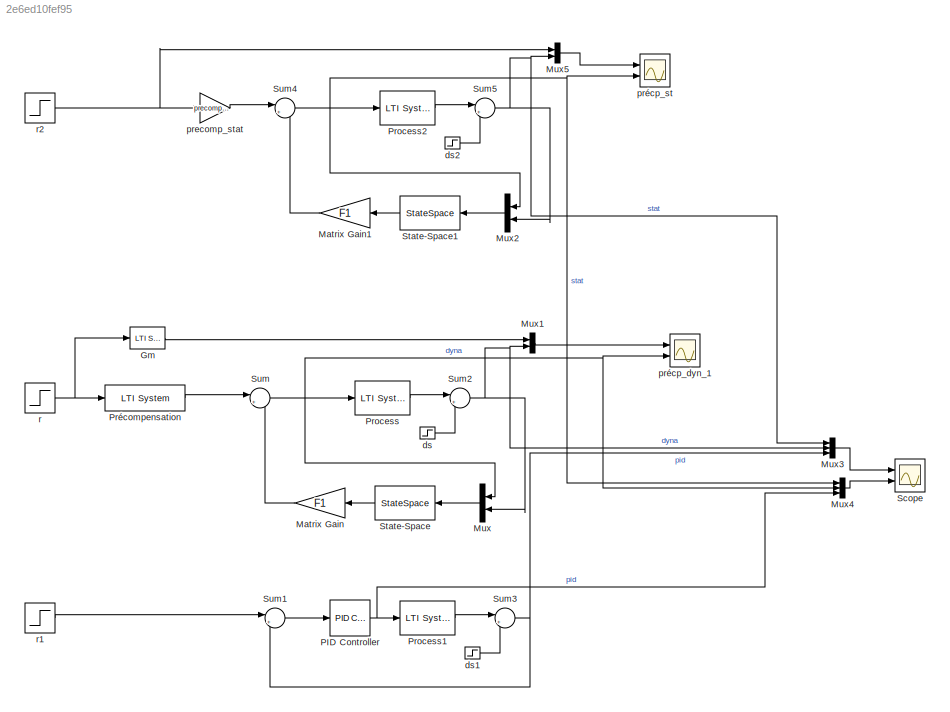
MODEL slx_2e6ed10fef95
KIND model
CONFIG AbsTol = auto
CONFIG EnableMultiTasking = on
CONFIG FixedStep = .001
CONFIG MaxStep = auto
CONFIG MinStep = auto
CONFIG RelTol = 1e-3
CONFIG SampleTimeConstraint = Unconstrained
CONFIG Solver = FixedStepAuto
CONFIG SolverName = FixedStepAuto
CONFIG StartTime = 0.0
CONFIG StopTime = 5
BLOCK [Reference] Gm  REF=cstblocks/LTI System
  Ports = [1, 1]
  SourceBlock = cstblocks/LTI System
  SourceProductBaseCode = CT
  SourceProductName = Control System Toolbox
  SourceType = LTI Block
BLOCK [Gain] Matrix Gain
  Gain = F1
  Multiplication = Matrix(K*u)
BLOCK [Gain] Matrix Gain1
  Gain = F1
  Multiplication = Matrix(K*u)
BLOCK [Mux] Mux
  DisplayOption = bar
  Inputs = 2
  Ports = [2, 1]
BLOCK [Mux] Mux1
  DisplayOption = bar
  Inputs = 2
  Ports = [2, 1]
BLOCK [Mux] Mux2
  DisplayOption = bar
  Inputs = 2
  Ports = [2, 1]
BLOCK [Mux] Mux3
  DisplayOption = bar
  Inputs = 3
  Ports = [3, 1]
BLOCK [Mux] Mux4
  DisplayOption = bar
  Inputs = 3
  Ports = [3, 1]
BLOCK [Mux] Mux5
  DisplayOption = bar
  Inputs = 2
  Ports = [2, 1]
BLOCK [Reference] PID Controller  REF=simulink/Continuous/PID Controller
  Ports = [1, 1]
  SourceBlock = simulink/Continuous/PID Controller
  SourceProductBaseCode = SL
  SourceProductName = Simulink
  SourceType = PID 1dof
BLOCK [Reference] Process  REF=cstblocks/LTI System
  Ports = [1, 1]
  SourceBlock = cstblocks/LTI System
  SourceProductBaseCode = CT
  SourceProductName = Control System Toolbox
  SourceType = LTI Block
BLOCK [Reference] Process1  REF=cstblocks/LTI System
  Ports = [1, 1]
  SourceBlock = cstblocks/LTI System
  SourceProductBaseCode = CT
  SourceProductName = Control System Toolbox
  SourceType = LTI Block
BLOCK [Reference] Process2  REF=cstblocks/LTI System
  Ports = [1, 1]
  SourceBlock = cstblocks/LTI System
  SourceProductBaseCode = CT
  SourceProductName = Control System Toolbox
  SourceType = LTI Block
BLOCK [Reference] Précompensation  REF=cstblocks/LTI System
  Ports = [1, 1]
  SourceBlock = cstblocks/LTI System
  SourceProductBaseCode = CT
  SourceProductName = Control System Toolbox
  SourceType = LTI Block
BLOCK [Scope] Scope
  Floating = off
  NumInputPorts = 2
  Ports = [2]
  ScopeSpecificationString = Simulink.scopes.TimeScopeBlockCfg('CurrentConfiguration', extmgr.ConfigurationSet(extmgr.Configuration('Core','General UI',true),extmgr.Configuration('Core','Source UI',true),extmgr.Configuration('Sources','WiredSimulink',true,'DataLoggingVariableName','ScopeData2'),extmgr.Configuration('Visuals','Time Domain',true,'SerializedDisplays',{struct('MinYLimReal','-0.25388','MaxYLimReal','2.28494','YLab...<+2102ch>
BLOCK [StateSpace] State-Space
  A = A-K1*C
  B = [B K1]
  C = eye(3)
  D = [0 0 ;0 0 ;0 0 ]
  InitialCondition = 0
  Ports = [1, 1]
BLOCK [StateSpace] State-Space1
  A = A-K1*C
  B = [B K1]
  C = eye(3)
  D = [0 0 ;0 0 ;0 0 ]
  InitialCondition = 0
  Ports = [1, 1]
BLOCK [Sum] Sum
  IconShape = round
  Inputs = |+-
  Ports = [2, 1]
BLOCK [Sum] Sum1
  IconShape = round
  Inputs = |+-
  Ports = [2, 1]
BLOCK [Sum] Sum2
  IconShape = round
  Inputs = |++
  Ports = [2, 1]
BLOCK [Sum] Sum3
  IconShape = round
  Inputs = |++
  Ports = [2, 1]
BLOCK [Sum] Sum4
  IconShape = round
  Inputs = |+-
  Ports = [2, 1]
BLOCK [Sum] Sum5
  IconShape = round
  Inputs = |++
  Ports = [2, 1]
BLOCK [Step] ds
  SampleTime = 0
  Time = 3
BLOCK [Step] ds1
  SampleTime = 0
  Time = 3
BLOCK [Step] ds2
  SampleTime = 0
  Time = 3
BLOCK [Gain] precomp_stat
  Gain = precomp_stat
  Multiplication = Matrix(K*u)
BLOCK [Scope] précp_dyn_1
  Floating = off
  NumInputPorts = 2
  Ports = [2]
  ScopeSpecificationString = Simulink.scopes.TimeScopeBlockCfg('CurrentConfiguration', extmgr.ConfigurationSet(extmgr.Configuration('Core','General UI',true,'FigureColor',[1 1 1]),extmgr.Configuration('Core','Source UI',true),extmgr.Configuration('Sources','WiredSimulink',true,'DataLogging',true,'DataLoggingVariableName','y_dyn_a','DataLoggingSaveFormat','StructureWithTime','DataLoggingDecimation','1','DataLoggingDecimateData...<+2788ch>
BLOCK [Scope] précp_st
  Floating = off
  NumInputPorts = 2
  Ports = [2]
  ScopeSpecificationString = Simulink.scopes.TimeScopeBlockCfg('CurrentConfiguration', extmgr.ConfigurationSet(extmgr.Configuration('Core','General UI',true),extmgr.Configuration('Core','Source UI',true),extmgr.Configuration('Sources','WiredSimulink',true,'DataLogging',true,'DataLoggingVariableName','ScopeData1','DataLoggingSaveFormat','StructureWithTime','DataLoggingDecimation','1','DataLoggingDecimateData',true),extmgr.Conf...<+2377ch>
BLOCK [Step] r
  SampleTime = 0
BLOCK [Step] r1
  SampleTime = 0
BLOCK [Step] r2
  SampleTime = 0
LINE Gm:1 -> Mux1:1
LINE Matrix Gain1:1 -> Sum4:2
LINE Matrix Gain:1 -> Sum:2
LINE Mux1:1 -> précp_dyn_1:1
LINE Mux2:1 -> State-Space1:1
LINE Mux3:1 -> Scope:1
LINE Mux4:1 -> Scope:2
LINE Mux5:1 -> précp_st:1
LINE Mux:1 -> State-Space:1
NET PID Controller:1 -> Mux4:3, Process1:1
LINE Process1:1 -> Sum3:1
LINE Process2:1 -> Sum5:1
LINE Process:1 -> Sum2:1
LINE Précompensation:1 -> Sum:1
LINE State-Space1:1 -> Matrix Gain1:1
LINE State-Space:1 -> Matrix Gain:1
LINE Sum1:1 -> PID Controller:1
NET Sum2:1 -> Mux1:2, Mux3:2, Mux:2
NET Sum3:1 -> Mux3:3, Sum1:2
NET Sum4:1 -> Mux2:1, Mux4:1, Process2:1, précp_st:2
NET Sum5:1 -> Mux2:2, Mux3:1, Mux5:2
NET Sum:1 -> Mux4:2, Mux:1, Process:1, précp_dyn_1:2
LINE ds1:1 -> Sum3:2
LINE ds2:1 -> Sum5:2
LINE ds:1 -> Sum2:2
LINE precomp_stat:1 -> Sum4:1
LINE r1:1 -> Sum1:1
NET r2:1 -> Mux5:1, precomp_stat:1
NET r:1 -> Gm:1, Précompensation:1
note: NET lines group one-source signal fan-out (src -> all destinations, sorted); 1:1 wires keep LINE
